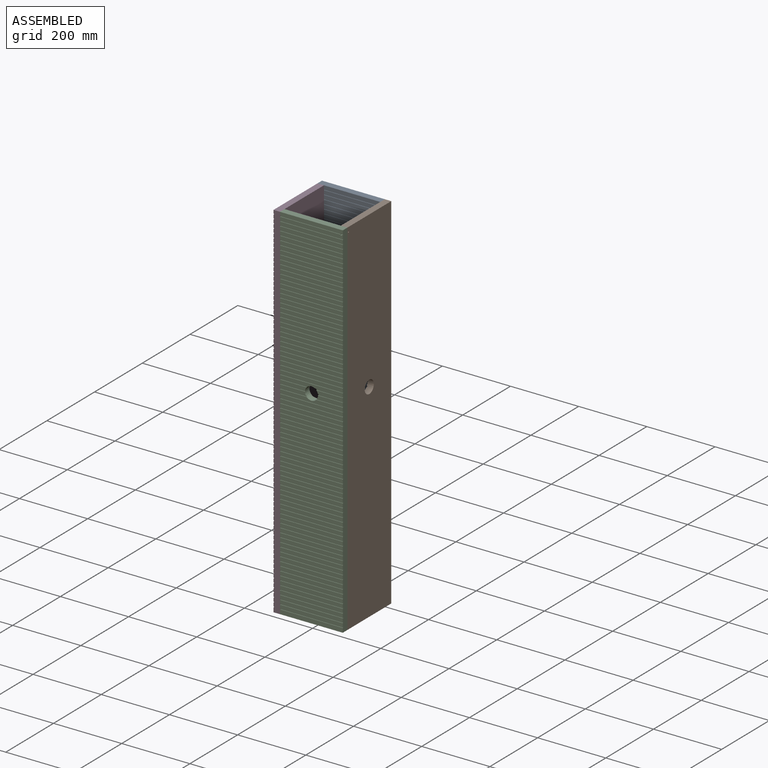
[diagram: assembled view]
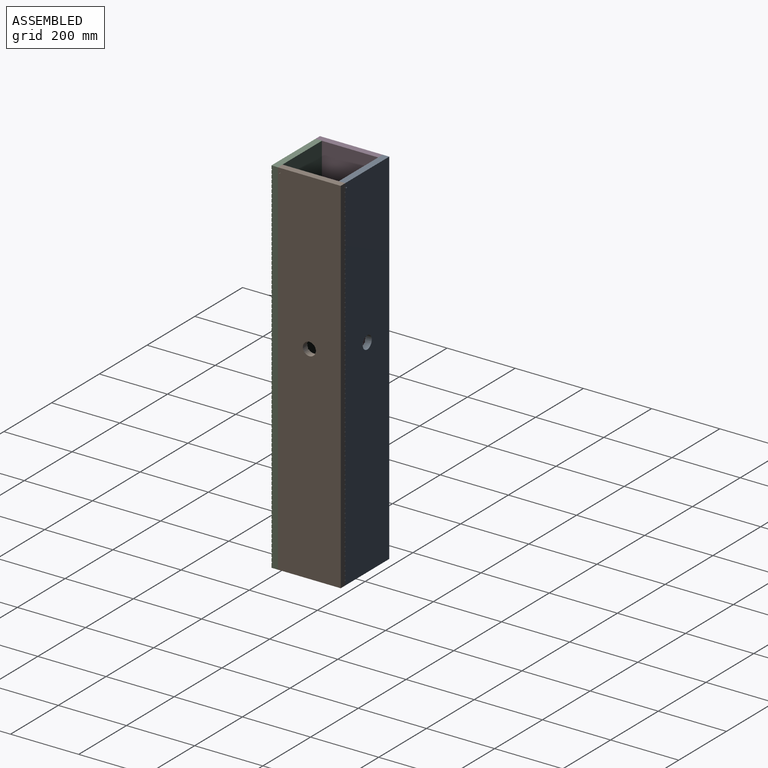
[diagram: assembled view, second angle]
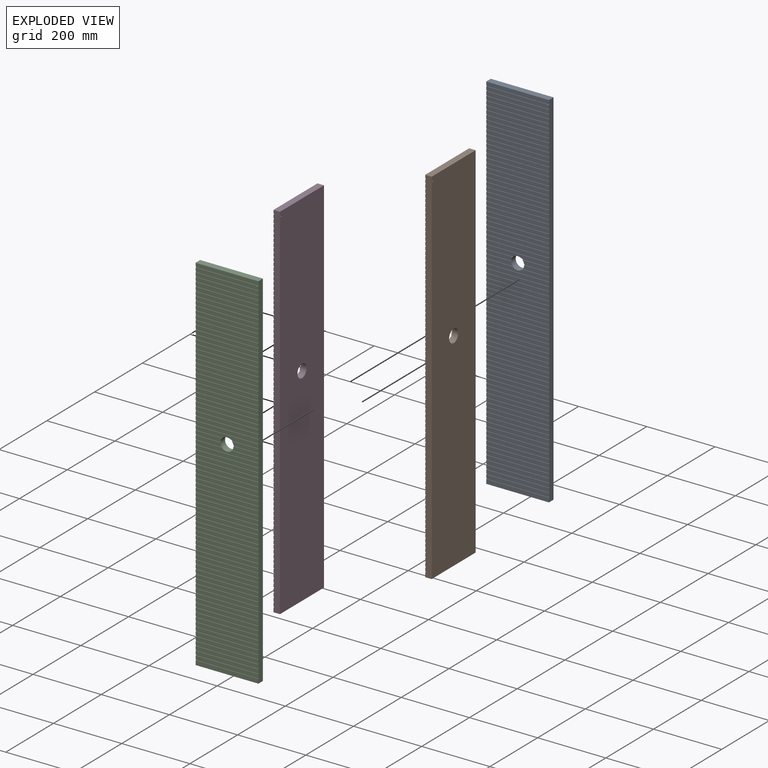
[diagram: exploded view]
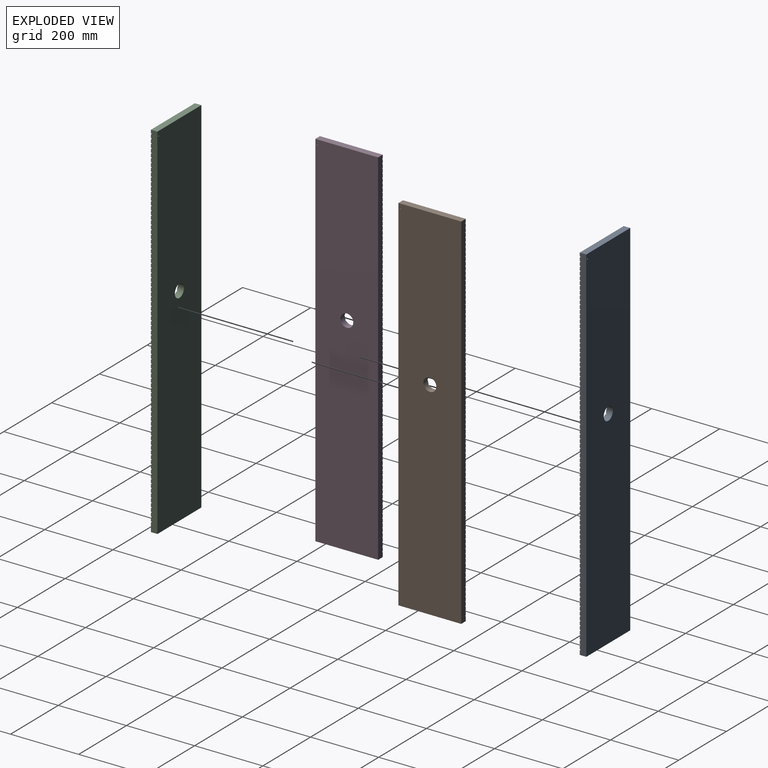
[diagram: exploded view, second angle]
ASSEMBLY  parts=4 mates=3
PART A: 352 faces, bbox 184.2x19.1x1066.8 mm
  f0: plane 177.34x1.59mm, normal (0,0,1), area 281.5mm2, adj f16,f18,f349,f351
  f1: plane 184.15x9.53mm, normal (0,-1,0), area 1708.7mm2, adj f13,f16,f96,f245,f249,f350
  f2: plane 77.88x9.53mm, normal (0,-1,0), area 714.6mm2, adj f10,f14,f96,f350
  f3: plane 77.88x9.53mm, normal (0,-1,0), area 714.6mm2, adj f16,f242,f246,f350
  f4: plane 75.58x9.53mm, normal (0,-1,0), area 703.4mm2, adj f7,f11,f96,f350
  f5: plane 75.58x9.53mm, normal (0,-1,0), area 703.4mm2, adj f16,f239,f243,f350
  f6: plane 184.15x9.53mm, normal (0,-1,0), area 1629.1mm2, adj f8,f16,f96,f236,f240,f350
  f7: plane 75.58x1.59mm, normal (0,0,-1), area 120mm2, adj f4,f96,f241,f350
  f8: plane 77.88x1.59mm, normal (0,0,1), area 123.6mm2, adj f6,f96,f241,f350
  f9: plane 77.88x3.18mm, normal (0,-1,0), area 243.3mm2, adj f16,f239,f240,f350
  f10: plane 73.29x1.59mm, normal (0,0,-1), area 116.4mm2, adj f2,f12,f96,f350
  f11: plane 73.03x1.59mm, normal (0,0,1), area 115.9mm2, adj f4,f12,f96,f350
  f12: plane 73.29x3.18mm, normal (0,-1,0), area 232.1mm2, adj f10,f11,f96,f350
  f13: plane 81.54x1.59mm, normal (0,0,-1), area 129.5mm2, adj f1,f15,f96,f350
  f14: plane 77.88x1.59mm, normal (0,0,1), area 123.6mm2, adj f2,f15,f96,f350
  f15: plane 81.54x3.18mm, normal (0,-1,0), area 252.6mm2, adj f13,f14,f96,f350
  f16: plane 1066.8x19.05mm, normal (-1,0,0), area 19904.2mm2, adj f0,f1,f3,f5,f6,f9,f17,f18
  f17: plane 184.15x9.53mm, normal (0,-1,0), area 1754mm2, adj f16,f96,f99,f347
  f18: plane 184.15x9.53mm, normal (0,-1,0), area 1746.4mm2, adj f0,f16,f96,f344,f348,f351
  f19: plane 184.15x9.53mm, normal (0,-1,0), area 1754mm2, adj f16,f96,f341,f345
  f20: plane 184.15x9.53mm, normal (0,-1,0), area 1754mm2, adj f16,f96,f338,f342
  f21: plane 184.15x9.53mm, normal (0,-1,0), area 1754mm2, adj f16,f96,f335,f339
  f22: plane 184.15x9.53mm, normal (0,-1,0), area 1754mm2, adj f16,f96,f332,f336
  f23: plane 184.15x9.53mm, normal (0,-1,0), area 1754mm2, adj f16,f96,f329,f333
  f24: plane 184.15x9.53mm, normal (0,-1,0), area 1754mm2, adj f16,f96,f326,f330
  f25: plane 184.15x9.53mm, normal (0,-1,0), area 1754mm2, adj f16,f96,f323,f327
  f26: plane 184.15x9.53mm, normal (0,-1,0), area 1754mm2, adj f16,f96,f320,f324
  f27: plane 184.15x9.53mm, normal (0,-1,0), area 1754mm2, adj f16,f96,f317,f321
  f28: plane 184.15x9.53mm, normal (0,-1,0), area 1754mm2, adj f16,f96,f314,f318
  f29: plane 184.15x9.53mm, normal (0,-1,0), area 1754mm2, adj f16,f96,f311,f315
  f30: plane 184.15x9.53mm, normal (0,-1,0), area 1754mm2, adj f16,f96,f308,f312
  f31: plane 184.15x9.53mm, normal (0,-1,0), area 1754mm2, adj f16,f96,f305,f309
  f32: plane 184.15x9.53mm, normal (0,-1,0), area 1754mm2, adj f16,f96,f302,f306
  f33: plane 184.15x9.53mm, normal (0,-1,0), area 1754mm2, adj f16,f96,f299,f303
  f34: plane 184.15x9.53mm, normal (0,-1,0), area 1754mm2, adj f16,f96,f296,f300
  f35: plane 184.15x9.53mm, normal (0,-1,0), area 1754mm2, adj f16,f96,f293,f297
  f36: plane 184.15x9.53mm, normal (0,-1,0), area 1754mm2, adj f16,f96,f290,f294
  f37: plane 184.15x9.53mm, normal (0,-1,0), area 1754mm2, adj f16,f96,f287,f291
  f38: plane 184.15x9.53mm, normal (0,-1,0), area 1754mm2, adj f16,f96,f284,f288
  f39: plane 184.15x9.53mm, normal (0,-1,0), area 1754mm2, adj f16,f96,f281,f285
  f40: plane 184.15x9.53mm, normal (0,-1,0), area 1754mm2, adj f16,f96,f278,f282
  f41: plane 184.15x9.53mm, normal (0,-1,0), area 1754mm2, adj f16,f96,f275,f279
  f42: plane 184.15x9.53mm, normal (0,-1,0), area 1754mm2, adj f16,f96,f272,f276
  f43: plane 184.15x9.53mm, normal (0,-1,0), area 1754mm2, adj f16,f96,f269,f273
  f44: plane 184.15x9.53mm, normal (0,-1,0), area 1754mm2, adj f16,f96,f266,f270
  f45: plane 184.15x9.53mm, normal (0,-1,0), area 1754mm2, adj f16,f96,f263,f267
  f46: plane 184.15x9.53mm, normal (0,-1,0), area 1754mm2, adj f16,f96,f260,f264
  f47: plane 184.15x9.53mm, normal (0,-1,0), area 1754mm2, adj f16,f96,f257,f261
  f48: plane 184.15x9.53mm, normal (0,-1,0), area 1754mm2, adj f16,f96,f254,f258
  f49: plane 184.15x9.53mm, normal (0,-1,0), area 1754mm2, adj f16,f96,f251,f255
  f50: plane 184.15x9.53mm, normal (0,-1,0), area 1754mm2, adj f16,f96,f248,f252
  f51: plane 184.15x9.53mm, normal (0,-1,0), area 1754mm2, adj f16,f96,f233,f237
  f52: plane 184.15x9.53mm, normal (0,-1,0), area 1754mm2, adj f16,f96,f230,f234
  f53: plane 184.15x9.53mm, normal (0,-1,0), area 1754mm2, adj f16,f96,f227,f231
  f54: plane 184.15x9.53mm, normal (0,-1,0), area 1754mm2, adj f16,f96,f224,f228
  f55: plane 184.15x9.53mm, normal (0,-1,0), area 1754mm2, adj f16,f96,f221,f225
  f56: plane 184.15x9.53mm, normal (0,-1,0), area 1754mm2, adj f16,f96,f218,f222
  f57: plane 184.15x9.53mm, normal (0,-1,0), area 1754mm2, adj f16,f96,f215,f219
  f58: plane 184.15x9.53mm, normal (0,-1,0), area 1754mm2, adj f16,f96,f212,f216
  f59: plane 184.15x9.53mm, normal (0,-1,0), area 1754mm2, adj f16,f96,f209,f213
  f60: plane 184.15x9.53mm, normal (0,-1,0), area 1754mm2, adj f16,f96,f206,f210
  f61: plane 184.15x9.53mm, normal (0,-1,0), area 1754mm2, adj f16,f96,f203,f207
  f62: plane 184.15x9.53mm, normal (0,-1,0), area 1754mm2, adj f16,f96,f200,f204
  f63: plane 184.15x9.53mm, normal (0,-1,0), area 1754mm2, adj f16,f96,f197,f201
  f64: plane 184.15x9.53mm, normal (0,-1,0), area 1754mm2, adj f16,f96,f194,f198
  f65: plane 184.15x9.53mm, normal (0,-1,0), area 1754mm2, adj f16,f96,f191,f195
  f66: plane 184.15x9.53mm, normal (0,-1,0), area 1754mm2, adj f16,f96,f188,f192
  f67: plane 184.15x9.53mm, normal (0,-1,0), area 1754mm2, adj f16,f96,f185,f189
  f68: plane 184.15x9.53mm, normal (0,-1,0), area 1754mm2, adj f16,f96,f182,f186
  f69: plane 184.15x9.53mm, normal (0,-1,0), area 1754mm2, adj f16,f96,f179,f183
  f70: plane 184.15x9.53mm, normal (0,-1,0), area 1754mm2, adj f16,f96,f176,f180
  f71: plane 184.15x9.53mm, normal (0,-1,0), area 1754mm2, adj f16,f96,f173,f177
  f72: plane 184.15x9.53mm, normal (0,-1,0), area 1754mm2, adj f16,f96,f170,f174
  f73: plane 184.15x9.53mm, normal (0,-1,0), area 1754mm2, adj f16,f96,f167,f171
  f74: plane 184.15x9.53mm, normal (0,-1,0), area 1754mm2, adj f16,f96,f164,f168
  f75: plane 184.15x9.53mm, normal (0,-1,0), area 1754mm2, adj f16,f96,f161,f165
  f76: plane 184.15x9.53mm, normal (0,-1,0), area 1754mm2, adj f16,f96,f158,f162
  f77: plane 184.15x9.53mm, normal (0,-1,0), area 1754mm2, adj f16,f96,f155,f159
  f78: plane 184.15x9.53mm, normal (0,-1,0), area 1754mm2, adj f16,f96,f152,f156
  f79: plane 184.15x9.53mm, normal (0,-1,0), area 1754mm2, adj f16,f96,f149,f153
  f80: plane 184.15x9.53mm, normal (0,-1,0), area 1754mm2, adj f16,f96,f146,f150
  f81: plane 184.15x9.53mm, normal (0,-1,0), area 1754mm2, adj f16,f96,f143,f147
  f82: plane 184.15x9.53mm, normal (0,-1,0), area 1754mm2, adj f16,f96,f140,f144
  f83: plane 184.15x9.53mm, normal (0,-1,0), area 1754mm2, adj f16,f96,f137,f141
  f84: plane 184.15x9.53mm, normal (0,-1,0), area 1754mm2, adj f16,f96,f134,f138
  f85: plane 184.15x9.53mm, normal (0,-1,0), area 1754mm2, adj f16,f96,f131,f135
  f86: plane 184.15x9.53mm, normal (0,-1,0), area 1754mm2, adj f16,f96,f128,f132
  f87: plane 184.15x9.53mm, normal (0,-1,0), area 1754mm2, adj f16,f96,f125,f129
  f88: plane 184.15x9.53mm, normal (0,-1,0), area 1754mm2, adj f16,f96,f122,f126
  f89: plane 184.15x9.53mm, normal (0,-1,0), area 1754mm2, adj f16,f96,f119,f123
  f90: plane 184.15x9.53mm, normal (0,-1,0), area 1754mm2, adj f16,f96,f116,f120
  f91: plane 184.15x9.53mm, normal (0,-1,0), area 1754mm2, adj f16,f96,f113,f117
  f92: plane 184.15x9.53mm, normal (0,-1,0), area 1754mm2, adj f16,f96,f110,f114
  f93: plane 184.15x9.53mm, normal (0,-1,0), area 1754mm2, adj f16,f96,f107,f111
  f94: plane 184.15x9.53mm, normal (0,-1,0), area 1754mm2, adj f16,f96,f104,f108
  f95: plane 184.15x9.53mm, normal (0,-1,0), area 1754mm2, adj f16,f96,f101,f105
  f96: plane 1066.8x19.05mm, normal (1,0,0), area 19904.2mm2, adj f1,f2,f4,f6,f7,f8,f10,f11
  f97: plane 1066.8x184.15mm, normal (0,1,0), area 195299.7mm2, adj f16,f96,f99,f100,f350,f351
  f98: plane 184.15x12.7mm, normal (0,-1,0), area 2338.7mm2, adj f16,f96,f100,f102
  f99: plane 184.15x19.05mm, normal (0,0,1), area 3508.1mm2, adj f16,f17,f96,f97
  f100: plane 184.15x19.05mm, normal (0,0,-1), area 3508.1mm2, adj f16,f96,f97,f98
  f101: plane 184.15x1.59mm, normal (0,0,-1), area 292.3mm2, adj f16,f95,f96,f103
  f102: plane 184.15x1.59mm, normal (0,0,1), area 292.3mm2, adj f16,f96,f98,f103
  f103: plane 184.15x3.18mm, normal (0,-1,0), area 584.7mm2, adj f16,f96,f101,f102
  f104: plane 184.15x1.59mm, normal (0,0,-1), area 292.3mm2, adj f16,f94,f96,f106
  f105: plane 184.15x1.59mm, normal (0,0,1), area 292.3mm2, adj f16,f95,f96,f106
  f106: plane 184.15x3.18mm, normal (0,-1,0), area 584.7mm2, adj f16,f96,f104,f105
  f107: plane 184.15x1.59mm, normal (0,0,-1), area 292.3mm2, adj f16,f93,f96,f109
  f108: plane 184.15x1.59mm, normal (0,0,1), area 292.3mm2, adj f16,f94,f96,f109
  f109: plane 184.15x3.18mm, normal (0,-1,0), area 584.7mm2, adj f16,f96,f107,f108
  f110: plane 184.15x1.59mm, normal (0,0,-1), area 292.3mm2, adj f16,f92,f96,f112
  f111: plane 184.15x1.59mm, normal (0,0,1), area 292.3mm2, adj f16,f93,f96,f112
  f112: plane 184.15x3.18mm, normal (0,-1,0), area 584.7mm2, adj f16,f96,f110,f111
  f113: plane 184.15x1.59mm, normal (0,0,-1), area 292.3mm2, adj f16,f91,f96,f115
  f114: plane 184.15x1.59mm, normal (0,0,1), area 292.3mm2, adj f16,f92,f96,f115
  f115: plane 184.15x3.18mm, normal (0,-1,0), area 584.7mm2, adj f16,f96,f113,f114
  f116: plane 184.15x1.59mm, normal (0,0,-1), area 292.3mm2, adj f16,f90,f96,f118
  f117: plane 184.15x1.59mm, normal (0,0,1), area 292.3mm2, adj f16,f91,f96,f118
  f118: plane 184.15x3.18mm, normal (0,-1,0), area 584.7mm2, adj f16,f96,f116,f117
  f119: plane 184.15x1.59mm, normal (0,0,-1), area 292.3mm2, adj f16,f89,f96,f121
  f120: plane 184.15x1.59mm, normal (0,0,1), area 292.3mm2, adj f16,f90,f96,f121
  f121: plane 184.15x3.18mm, normal (0,-1,0), area 584.7mm2, adj f16,f96,f119,f120
  f122: plane 184.15x1.59mm, normal (0,0,-1), area 292.3mm2, adj f16,f88,f96,f124
  f123: plane 184.15x1.59mm, normal (0,0,1), area 292.3mm2, adj f16,f89,f96,f124
  f124: plane 184.15x3.18mm, normal (0,-1,0), area 584.7mm2, adj f16,f96,f122,f123
  f125: plane 184.15x1.59mm, normal (0,0,-1), area 292.3mm2, adj f16,f87,f96,f127
  f126: plane 184.15x1.59mm, normal (0,0,1), area 292.3mm2, adj f16,f88,f96,f127
  f127: plane 184.15x3.18mm, normal (0,-1,0), area 584.7mm2, adj f16,f96,f125,f126
  f128: plane 184.15x1.59mm, normal (0,0,-1), area 292.3mm2, adj f16,f86,f96,f130
  f129: plane 184.15x1.59mm, normal (0,0,1), area 292.3mm2, adj f16,f87,f96,f130
  f130: plane 184.15x3.18mm, normal (0,-1,0), area 584.7mm2, adj f16,f96,f128,f129
  f131: plane 184.15x1.59mm, normal (0,0,-1), area 292.3mm2, adj f16,f85,f96,f133
  f132: plane 184.15x1.59mm, normal (0,0,1), area 292.3mm2, adj f16,f86,f96,f133
  f133: plane 184.15x3.18mm, normal (0,-1,0), area 584.7mm2, adj f16,f96,f131,f132
  f134: plane 184.15x1.59mm, normal (0,0,-1), area 292.3mm2, adj f16,f84,f96,f136
  f135: plane 184.15x1.59mm, normal (0,0,1), area 292.3mm2, adj f16,f85,f96,f136
  f136: plane 184.15x3.18mm, normal (0,-1,0), area 584.7mm2, adj f16,f96,f134,f135
  f137: plane 184.15x1.59mm, normal (0,0,-1), area 292.3mm2, adj f16,f83,f96,f139
  f138: plane 184.15x1.59mm, normal (0,0,1), area 292.3mm2, adj f16,f84,f96,f139
  f139: plane 184.15x3.18mm, normal (0,-1,0), area 584.7mm2, adj f16,f96,f137,f138
  f140: plane 184.15x1.59mm, normal (0,0,-1), area 292.3mm2, adj f16,f82,f96,f142
  f141: plane 184.15x1.59mm, normal (0,0,1), area 292.3mm2, adj f16,f83,f96,f142
  f142: plane 184.15x3.18mm, normal (0,-1,0), area 584.7mm2, adj f16,f96,f140,f141
  f143: plane 184.15x1.59mm, normal (0,0,-1), area 292.3mm2, adj f16,f81,f96,f145
  f144: plane 184.15x1.59mm, normal (0,0,1), area 292.3mm2, adj f16,f82,f96,f145
  f145: plane 184.15x3.18mm, normal (0,-1,0), area 584.7mm2, adj f16,f96,f143,f144
  f146: plane 184.15x1.59mm, normal (0,0,-1), area 292.3mm2, adj f16,f80,f96,f148
  f147: plane 184.15x1.59mm, normal (0,0,1), area 292.3mm2, adj f16,f81,f96,f148
  f148: plane 184.15x3.18mm, normal (0,-1,0), area 584.7mm2, adj f16,f96,f146,f147
  f149: plane 184.15x1.59mm, normal (0,0,-1), area 292.3mm2, adj f16,f79,f96,f151
  f150: plane 184.15x1.59mm, normal (0,0,1), area 292.3mm2, adj f16,f80,f96,f151
  f151: plane 184.15x3.18mm, normal (0,-1,0), area 584.7mm2, adj f16,f96,f149,f150
  f152: plane 184.15x1.59mm, normal (0,0,-1), area 292.3mm2, adj f16,f78,f96,f154
  f153: plane 184.15x1.59mm, normal (0,0,1), area 292.3mm2, adj f16,f79,f96,f154
  f154: plane 184.15x3.18mm, normal (0,-1,0), area 584.7mm2, adj f16,f96,f152,f153
  f155: plane 184.15x1.59mm, normal (0,0,-1), area 292.3mm2, adj f16,f77,f96,f157
  f156: plane 184.15x1.59mm, normal (0,0,1), area 292.3mm2, adj f16,f78,f96,f157
  f157: plane 184.15x3.18mm, normal (0,-1,0), area 584.7mm2, adj f16,f96,f155,f156
  f158: plane 184.15x1.59mm, normal (0,0,-1), area 292.3mm2, adj f16,f76,f96,f160
  f159: plane 184.15x1.59mm, normal (0,0,1), area 292.3mm2, adj f16,f77,f96,f160
  f160: plane 184.15x3.18mm, normal (0,-1,0), area 584.7mm2, adj f16,f96,f158,f159
  f161: plane 184.15x1.59mm, normal (0,0,-1), area 292.3mm2, adj f16,f75,f96,f163
  f162: plane 184.15x1.59mm, normal (0,0,1), area 292.3mm2, adj f16,f76,f96,f163
  f163: plane 184.15x3.18mm, normal (0,-1,0), area 584.7mm2, adj f16,f96,f161,f162
  f164: plane 184.15x1.59mm, normal (0,0,-1), area 292.3mm2, adj f16,f74,f96,f166
  f165: plane 184.15x1.59mm, normal (0,0,1), area 292.3mm2, adj f16,f75,f96,f166
  f166: plane 184.15x3.18mm, normal (0,-1,0), area 584.7mm2, adj f16,f96,f164,f165
  f167: plane 184.15x1.59mm, normal (0,0,-1), area 292.3mm2, adj f16,f73,f96,f169
  f168: plane 184.15x1.59mm, normal (0,0,1), area 292.3mm2, adj f16,f74,f96,f169
  f169: plane 184.15x3.18mm, normal (0,-1,0), area 584.7mm2, adj f16,f96,f167,f168
  f170: plane 184.15x1.59mm, normal (0,0,-1), area 292.3mm2, adj f16,f72,f96,f172
  f171: plane 184.15x1.59mm, normal (0,0,1), area 292.3mm2, adj f16,f73,f96,f172
  f172: plane 184.15x3.18mm, normal (0,-1,0), area 584.7mm2, adj f16,f96,f170,f171
  f173: plane 184.15x1.59mm, normal (0,0,-1), area 292.3mm2, adj f16,f71,f96,f175
  f174: plane 184.15x1.59mm, normal (0,0,1), area 292.3mm2, adj f16,f72,f96,f175
  f175: plane 184.15x3.18mm, normal (0,-1,0), area 584.7mm2, adj f16,f96,f173,f174
  f176: plane 184.15x1.59mm, normal (0,0,-1), area 292.3mm2, adj f16,f70,f96,f178
  f177: plane 184.15x1.59mm, normal (0,0,1), area 292.3mm2, adj f16,f71,f96,f178
  f178: plane 184.15x3.18mm, normal (0,-1,0), area 584.7mm2, adj f16,f96,f176,f177
  f179: plane 184.15x1.59mm, normal (0,0,-1), area 292.3mm2, adj f16,f69,f96,f181
  f180: plane 184.15x1.59mm, normal (0,0,1), area 292.3mm2, adj f16,f70,f96,f181
  f181: plane 184.15x3.18mm, normal (0,-1,0), area 584.7mm2, adj f16,f96,f179,f180
  f182: plane 184.15x1.59mm, normal (0,0,-1), area 292.3mm2, adj f16,f68,f96,f184
  f183: plane 184.15x1.59mm, normal (0,0,1), area 292.3mm2, adj f16,f69,f96,f184
  f184: plane 184.15x3.18mm, normal (0,-1,0), area 584.7mm2, adj f16,f96,f182,f183
  f185: plane 184.15x1.59mm, normal (0,0,-1), area 292.3mm2, adj f16,f67,f96,f187
  f186: plane 184.15x1.59mm, normal (0,0,1), area 292.3mm2, adj f16,f68,f96,f187
  f187: plane 184.15x3.18mm, normal (0,-1,0), area 584.7mm2, adj f16,f96,f185,f186
  f188: plane 184.15x1.59mm, normal (0,0,-1), area 292.3mm2, adj f16,f66,f96,f190
  f189: plane 184.15x1.59mm, normal (0,0,1), area 292.3mm2, adj f16,f67,f96,f190
  f190: plane 184.15x3.18mm, normal (0,-1,0), area 584.7mm2, adj f16,f96,f188,f189
  f191: plane 184.15x1.59mm, normal (0,0,-1), area 292.3mm2, adj f16,f65,f96,f193
  f192: plane 184.15x1.59mm, normal (0,0,1), area 292.3mm2, adj f16,f66,f96,f193
  f193: plane 184.15x3.18mm, normal (0,-1,0), area 584.7mm2, adj f16,f96,f191,f192
  f194: plane 184.15x1.59mm, normal (0,0,-1), area 292.3mm2, adj f16,f64,f96,f196
  f195: plane 184.15x1.59mm, normal (0,0,1), area 292.3mm2, adj f16,f65,f96,f196
  f196: plane 184.15x3.18mm, normal (0,-1,0), area 584.7mm2, adj f16,f96,f194,f195
  f197: plane 184.15x1.59mm, normal (0,0,-1), area 292.3mm2, adj f16,f63,f96,f199
  f198: plane 184.15x1.59mm, normal (0,0,1), area 292.3mm2, adj f16,f64,f96,f199
  f199: plane 184.15x3.18mm, normal (0,-1,0), area 584.7mm2, adj f16,f96,f197,f198
  f200: plane 184.15x1.59mm, normal (0,0,-1), area 292.3mm2, adj f16,f62,f96,f202
  f201: plane 184.15x1.59mm, normal (0,0,1), area 292.3mm2, adj f16,f63,f96,f202
  f202: plane 184.15x3.18mm, normal (0,-1,0), area 584.7mm2, adj f16,f96,f200,f201
  f203: plane 184.15x1.59mm, normal (0,0,-1), area 292.3mm2, adj f16,f61,f96,f205
  f204: plane 184.15x1.59mm, normal (0,0,1), area 292.3mm2, adj f16,f62,f96,f205
  f205: plane 184.15x3.18mm, normal (0,-1,0), area 584.7mm2, adj f16,f96,f203,f204
  f206: plane 184.15x1.59mm, normal (0,0,-1), area 292.3mm2, adj f16,f60,f96,f208
  f207: plane 184.15x1.59mm, normal (0,0,1), area 292.3mm2, adj f16,f61,f96,f208
  f208: plane 184.15x3.18mm, normal (0,-1,0), area 584.7mm2, adj f16,f96,f206,f207
  f209: plane 184.15x1.59mm, normal (0,0,-1), area 292.3mm2, adj f16,f59,f96,f211
  f210: plane 184.15x1.59mm, normal (0,0,1), area 292.3mm2, adj f16,f60,f96,f211
  f211: plane 184.15x3.18mm, normal (0,-1,0), area 584.7mm2, adj f16,f96,f209,f210
  f212: plane 184.15x1.59mm, normal (0,0,-1), area 292.3mm2, adj f16,f58,f96,f214
  f213: plane 184.15x1.59mm, normal (0,0,1), area 292.3mm2, adj f16,f59,f96,f214
  f214: plane 184.15x3.18mm, normal (0,-1,0), area 584.7mm2, adj f16,f96,f212,f213
  f215: plane 184.15x1.59mm, normal (0,0,-1), area 292.3mm2, adj f16,f57,f96,f217
  f216: plane 184.15x1.59mm, normal (0,0,1), area 292.3mm2, adj f16,f58,f96,f217
  f217: plane 184.15x3.18mm, normal (0,-1,0), area 584.7mm2, adj f16,f96,f215,f216
  f218: plane 184.15x1.59mm, normal (0,0,-1), area 292.3mm2, adj f16,f56,f96,f220
  f219: plane 184.15x1.59mm, normal (0,0,1), area 292.3mm2, adj f16,f57,f96,f220
  f220: plane 184.15x3.18mm, normal (0,-1,0), area 584.7mm2, adj f16,f96,f218,f219
  f221: plane 184.15x1.59mm, normal (0,0,-1), area 292.3mm2, adj f16,f55,f96,f223
  f222: plane 184.15x1.59mm, normal (0,0,1), area 292.3mm2, adj f16,f56,f96,f223
  f223: plane 184.15x3.18mm, normal (0,-1,0), area 584.7mm2, adj f16,f96,f221,f222
  f224: plane 184.15x1.59mm, normal (0,0,-1), area 292.3mm2, adj f16,f54,f96,f226
  f225: plane 184.15x1.59mm, normal (0,0,1), area 292.3mm2, adj f16,f55,f96,f226
  f226: plane 184.15x3.18mm, normal (0,-1,0), area 584.7mm2, adj f16,f96,f224,f225
  f227: plane 184.15x1.59mm, normal (0,0,-1), area 292.3mm2, adj f16,f53,f96,f229
  f228: plane 184.15x1.59mm, normal (0,0,1), area 292.3mm2, adj f16,f54,f96,f229
  f229: plane 184.15x3.18mm, normal (0,-1,0), area 584.7mm2, adj f16,f96,f227,f228
  f230: plane 184.15x1.59mm, normal (0,0,-1), area 292.3mm2, adj f16,f52,f96,f232
  f231: plane 184.15x1.59mm, normal (0,0,1), area 292.3mm2, adj f16,f53,f96,f232
  f232: plane 184.15x3.18mm, normal (0,-1,0), area 584.7mm2, adj f16,f96,f230,f231
  f233: plane 184.15x1.59mm, normal (0,0,-1), area 292.3mm2, adj f16,f51,f96,f235
  f234: plane 184.15x1.59mm, normal (0,0,1), area 292.3mm2, adj f16,f52,f96,f235
  f235: plane 184.15x3.18mm, normal (0,-1,0), area 584.7mm2, adj f16,f96,f233,f234
  f236: plane 184.15x1.59mm, normal (0,0,-1), area 292.3mm2, adj f6,f16,f96,f238
  f237: plane 184.15x1.59mm, normal (0,0,1), area 292.3mm2, adj f16,f51,f96,f238
  f238: plane 184.15x3.18mm, normal (0,-1,0), area 584.7mm2, adj f16,f96,f236,f237
  f239: plane 75.58x1.59mm, normal (0,0,-1), area 120mm2, adj f5,f9,f16,f350
  f240: plane 77.88x1.59mm, normal (0,0,1), area 123.6mm2, adj f6,f9,f16,f350
  f241: plane 77.88x3.18mm, normal (0,-1,0), area 243.3mm2, adj f7,f8,f96,f350
  f242: plane 73.29x1.59mm, normal (0,0,-1), area 116.4mm2, adj f3,f16,f244,f350
  f243: plane 73.03x1.59mm, normal (0,0,1), area 115.9mm2, adj f5,f16,f244,f350
  f244: plane 73.29x3.18mm, normal (0,-1,0), area 232.1mm2, adj f16,f242,f243,f350
  f245: plane 81.54x1.59mm, normal (0,0,-1), area 129.5mm2, adj f1,f16,f247,f350
  f246: plane 77.88x1.59mm, normal (0,0,1), area 123.6mm2, adj f3,f16,f247,f350
  f247: plane 81.54x3.18mm, normal (0,-1,0), area 252.6mm2, adj f16,f245,f246,f350
  f248: plane 184.15x1.59mm, normal (0,0,-1), area 292.3mm2, adj f16,f50,f96,f250
  f249: plane 184.15x1.59mm, normal (0,0,1), area 292.3mm2, adj f1,f16,f96,f250
  f250: plane 184.15x3.18mm, normal (0,-1,0), area 584.7mm2, adj f16,f96,f248,f249
  f251: plane 184.15x1.59mm, normal (0,0,-1), area 292.3mm2, adj f16,f49,f96,f253
  f252: plane 184.15x1.59mm, normal (0,0,1), area 292.3mm2, adj f16,f50,f96,f253
  f253: plane 184.15x3.18mm, normal (0,-1,0), area 584.7mm2, adj f16,f96,f251,f252
  f254: plane 184.15x1.59mm, normal (0,0,-1), area 292.3mm2, adj f16,f48,f96,f256
  f255: plane 184.15x1.59mm, normal (0,0,1), area 292.3mm2, adj f16,f49,f96,f256
  f256: plane 184.15x3.18mm, normal (0,-1,0), area 584.7mm2, adj f16,f96,f254,f255
  f257: plane 184.15x1.59mm, normal (0,0,-1), area 292.3mm2, adj f16,f47,f96,f259
  f258: plane 184.15x1.59mm, normal (0,0,1), area 292.3mm2, adj f16,f48,f96,f259
  f259: plane 184.15x3.18mm, normal (0,-1,0), area 584.7mm2, adj f16,f96,f257,f258
  f260: plane 184.15x1.59mm, normal (0,0,-1), area 292.3mm2, adj f16,f46,f96,f262
  f261: plane 184.15x1.59mm, normal (0,0,1), area 292.3mm2, adj f16,f47,f96,f262
  f262: plane 184.15x3.18mm, normal (0,-1,0), area 584.7mm2, adj f16,f96,f260,f261
  f263: plane 184.15x1.59mm, normal (0,0,-1), area 292.3mm2, adj f16,f45,f96,f265
  f264: plane 184.15x1.59mm, normal (0,0,1), area 292.3mm2, adj f16,f46,f96,f265
  f265: plane 184.15x3.18mm, normal (0,-1,0), area 584.7mm2, adj f16,f96,f263,f264
  f266: plane 184.15x1.59mm, normal (0,0,-1), area 292.3mm2, adj f16,f44,f96,f268
  f267: plane 184.15x1.59mm, normal (0,0,1), area 292.3mm2, adj f16,f45,f96,f268
  f268: plane 184.15x3.18mm, normal (0,-1,0), area 584.7mm2, adj f16,f96,f266,f267
  f269: plane 184.15x1.59mm, normal (0,0,-1), area 292.3mm2, adj f16,f43,f96,f271
  f270: plane 184.15x1.59mm, normal (0,0,1), area 292.3mm2, adj f16,f44,f96,f271
  f271: plane 184.15x3.18mm, normal (0,-1,0), area 584.7mm2, adj f16,f96,f269,f270
  f272: plane 184.15x1.59mm, normal (0,0,-1), area 292.3mm2, adj f16,f42,f96,f274
  f273: plane 184.15x1.59mm, normal (0,0,1), area 292.3mm2, adj f16,f43,f96,f274
  f274: plane 184.15x3.18mm, normal (0,-1,0), area 584.7mm2, adj f16,f96,f272,f273
  f275: plane 184.15x1.59mm, normal (0,0,-1), area 292.3mm2, adj f16,f41,f96,f277
  f276: plane 184.15x1.59mm, normal (0,0,1), area 292.3mm2, adj f16,f42,f96,f277
  f277: plane 184.15x3.18mm, normal (0,-1,0), area 584.7mm2, adj f16,f96,f275,f276
  f278: plane 184.15x1.59mm, normal (0,0,-1), area 292.3mm2, adj f16,f40,f96,f280
  f279: plane 184.15x1.59mm, normal (0,0,1), area 292.3mm2, adj f16,f41,f96,f280
  f280: plane 184.15x3.18mm, normal (0,-1,0), area 584.7mm2, adj f16,f96,f278,f279
  f281: plane 184.15x1.59mm, normal (0,0,-1), area 292.3mm2, adj f16,f39,f96,f283
  f282: plane 184.15x1.59mm, normal (0,0,1), area 292.3mm2, adj f16,f40,f96,f283
  f283: plane 184.15x3.18mm, normal (0,-1,0), area 584.7mm2, adj f16,f96,f281,f282
  f284: plane 184.15x1.59mm, normal (0,0,-1), area 292.3mm2, adj f16,f38,f96,f286
  f285: plane 184.15x1.59mm, normal (0,0,1), area 292.3mm2, adj f16,f39,f96,f286
  f286: plane 184.15x3.18mm, normal (0,-1,0), area 584.7mm2, adj f16,f96,f284,f285
  f287: plane 184.15x1.59mm, normal (0,0,-1), area 292.3mm2, adj f16,f37,f96,f289
  f288: plane 184.15x1.59mm, normal (0,0,1), area 292.3mm2, adj f16,f38,f96,f289
  f289: plane 184.15x3.18mm, normal (0,-1,0), area 584.7mm2, adj f16,f96,f287,f288
  f290: plane 184.15x1.59mm, normal (0,0,-1), area 292.3mm2, adj f16,f36,f96,f292
  f291: plane 184.15x1.59mm, normal (0,0,1), area 292.3mm2, adj f16,f37,f96,f292
  f292: plane 184.15x3.18mm, normal (0,-1,0), area 584.7mm2, adj f16,f96,f290,f291
  f293: plane 184.15x1.59mm, normal (0,0,-1), area 292.3mm2, adj f16,f35,f96,f295
  f294: plane 184.15x1.59mm, normal (0,0,1), area 292.3mm2, adj f16,f36,f96,f295
  f295: plane 184.15x3.18mm, normal (0,-1,0), area 584.7mm2, adj f16,f96,f293,f294
  f296: plane 184.15x1.59mm, normal (0,0,-1), area 292.3mm2, adj f16,f34,f96,f298
  f297: plane 184.15x1.59mm, normal (0,0,1), area 292.3mm2, adj f16,f35,f96,f298
  f298: plane 184.15x3.18mm, normal (0,-1,0), area 584.7mm2, adj f16,f96,f296,f297
  f299: plane 184.15x1.59mm, normal (0,0,-1), area 292.3mm2, adj f16,f33,f96,f301
  f300: plane 184.15x1.59mm, normal (0,0,1), area 292.3mm2, adj f16,f34,f96,f301
  f301: plane 184.15x3.18mm, normal (0,-1,0), area 584.7mm2, adj f16,f96,f299,f300
  f302: plane 184.15x1.59mm, normal (0,0,-1), area 292.3mm2, adj f16,f32,f96,f304
  f303: plane 184.15x1.59mm, normal (0,0,1), area 292.3mm2, adj f16,f33,f96,f304
  f304: plane 184.15x3.18mm, normal (0,-1,0), area 584.7mm2, adj f16,f96,f302,f303
  f305: plane 184.15x1.59mm, normal (0,0,-1), area 292.3mm2, adj f16,f31,f96,f307
  f306: plane 184.15x1.59mm, normal (0,0,1), area 292.3mm2, adj f16,f32,f96,f307
  f307: plane 184.15x3.18mm, normal (0,-1,0), area 584.7mm2, adj f16,f96,f305,f306
  f308: plane 184.15x1.59mm, normal (0,0,-1), area 292.3mm2, adj f16,f30,f96,f310
  f309: plane 184.15x1.59mm, normal (0,0,1), area 292.3mm2, adj f16,f31,f96,f310
  f310: plane 184.15x3.18mm, normal (0,-1,0), area 584.7mm2, adj f16,f96,f308,f309
  f311: plane 184.15x1.59mm, normal (0,0,-1), area 292.3mm2, adj f16,f29,f96,f313
  f312: plane 184.15x1.59mm, normal (0,0,1), area 292.3mm2, adj f16,f30,f96,f313
  f313: plane 184.15x3.18mm, normal (0,-1,0), area 584.7mm2, adj f16,f96,f311,f312
  f314: plane 184.15x1.59mm, normal (0,0,-1), area 292.3mm2, adj f16,f28,f96,f316
  f315: plane 184.15x1.59mm, normal (0,0,1), area 292.3mm2, adj f16,f29,f96,f316
  f316: plane 184.15x3.18mm, normal (0,-1,0), area 584.7mm2, adj f16,f96,f314,f315
  f317: plane 184.15x1.59mm, normal (0,0,-1), area 292.3mm2, adj f16,f27,f96,f319
  f318: plane 184.15x1.59mm, normal (0,0,1), area 292.3mm2, adj f16,f28,f96,f319
  f319: plane 184.15x3.18mm, normal (0,-1,0), area 584.7mm2, adj f16,f96,f317,f318
  f320: plane 184.15x1.59mm, normal (0,0,-1), area 292.3mm2, adj f16,f26,f96,f322
  f321: plane 184.15x1.59mm, normal (0,0,1), area 292.3mm2, adj f16,f27,f96,f322
  f322: plane 184.15x3.18mm, normal (0,-1,0), area 584.7mm2, adj f16,f96,f320,f321
  f323: plane 184.15x1.59mm, normal (0,0,-1), area 292.3mm2, adj f16,f25,f96,f325
  f324: plane 184.15x1.59mm, normal (0,0,1), area 292.3mm2, adj f16,f26,f96,f325
  f325: plane 184.15x3.18mm, normal (0,-1,0), area 584.7mm2, adj f16,f96,f323,f324
  f326: plane 184.15x1.59mm, normal (0,0,-1), area 292.3mm2, adj f16,f24,f96,f328
  f327: plane 184.15x1.59mm, normal (0,0,1), area 292.3mm2, adj f16,f25,f96,f328
  f328: plane 184.15x3.18mm, normal (0,-1,0), area 584.7mm2, adj f16,f96,f326,f327
  f329: plane 184.15x1.59mm, normal (0,0,-1), area 292.3mm2, adj f16,f23,f96,f331
  f330: plane 184.15x1.59mm, normal (0,0,1), area 292.3mm2, adj f16,f24,f96,f331
  f331: plane 184.15x3.18mm, normal (0,-1,0), area 584.7mm2, adj f16,f96,f329,f330
  f332: plane 184.15x1.59mm, normal (0,0,-1), area 292.3mm2, adj f16,f22,f96,f334
  f333: plane 184.15x1.59mm, normal (0,0,1), area 292.3mm2, adj f16,f23,f96,f334
  f334: plane 184.15x3.18mm, normal (0,-1,0), area 584.7mm2, adj f16,f96,f332,f333
  f335: plane 184.15x1.59mm, normal (0,0,-1), area 292.3mm2, adj f16,f21,f96,f337
  f336: plane 184.15x1.59mm, normal (0,0,1), area 292.3mm2, adj f16,f22,f96,f337
  f337: plane 184.15x3.18mm, normal (0,-1,0), area 584.7mm2, adj f16,f96,f335,f336
  f338: plane 184.15x1.59mm, normal (0,0,-1), area 292.3mm2, adj f16,f20,f96,f340
  f339: plane 184.15x1.59mm, normal (0,0,1), area 292.3mm2, adj f16,f21,f96,f340
  f340: plane 184.15x3.18mm, normal (0,-1,0), area 584.7mm2, adj f16,f96,f338,f339
  f341: plane 184.15x1.59mm, normal (0,0,-1), area 292.3mm2, adj f16,f19,f96,f343
  f342: plane 184.15x1.59mm, normal (0,0,1), area 292.3mm2, adj f16,f20,f96,f343
  f343: plane 184.15x3.18mm, normal (0,-1,0), area 584.7mm2, adj f16,f96,f341,f342
  f344: plane 184.15x1.59mm, normal (0,0,-1), area 292.3mm2, adj f16,f18,f96,f346
  f345: plane 184.15x1.59mm, normal (0,0,1), area 292.3mm2, adj f16,f19,f96,f346
  f346: plane 184.15x3.18mm, normal (0,-1,0), area 584.7mm2, adj f16,f96,f344,f345
  f347: plane 184.15x1.59mm, normal (0,0,-1), area 292.3mm2, adj f16,f17,f96,f349
  f348: plane 3.15x1.59mm, normal (0,0,1), area 5mm2, adj f18,f96,f349,f351
  f349: plane 184.15x3.18mm, normal (0,-1,0), area 580.9mm2, adj f0,f16,f96,f347,f348,f351
  f350: cylinder r=19.05mm len=38.1mm, axis (0,-1,0), area 2242.1mm2, adj f1,f2,f3,f4,f5,f6,f7,f8
  f351: cylinder r=1.91mm len=19.05mm, axis (0,1,0), area 220.2mm2, adj f0,f18,f97,f348,f349
PART B: same geometry as A
PART C: same geometry as A
PART D: same geometry as A
PLACE A t=(-16.65,185.05,-0.73)mm
PLACE B rot(axis=(0,0,-1),90deg) t=(84.95,102.5,-0.73)mm
PLACE C t=(2.4,0.9,-0.73)mm fixed
PLACE D rot(axis=(0,0,-1),90deg) t=(-99.2,83.45,-0.73)mm
MATE fastened B.f96 <-> C.f97  axis (0,-1,0) through (94.47,10.42,532.67)mm
MATE fastened D.f16 <-> A.f17  axis (0,1,0) through (-108.73,175.52,532.67)mm
MATE fastened B.f17 <-> A.f96  axis (-1,0,0) through (75.42,194.57,532.67)mm
